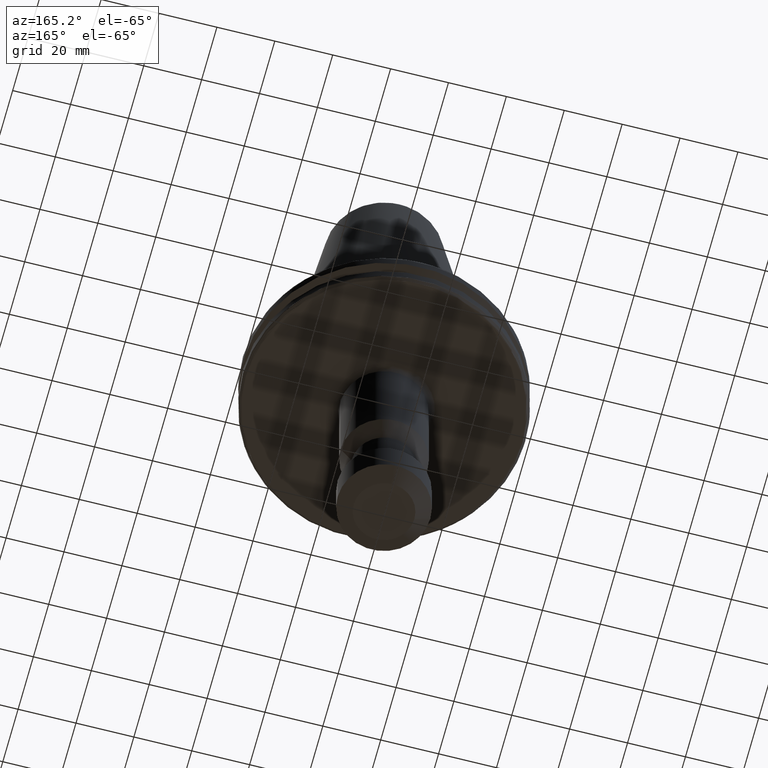
[diagram: clean part render]
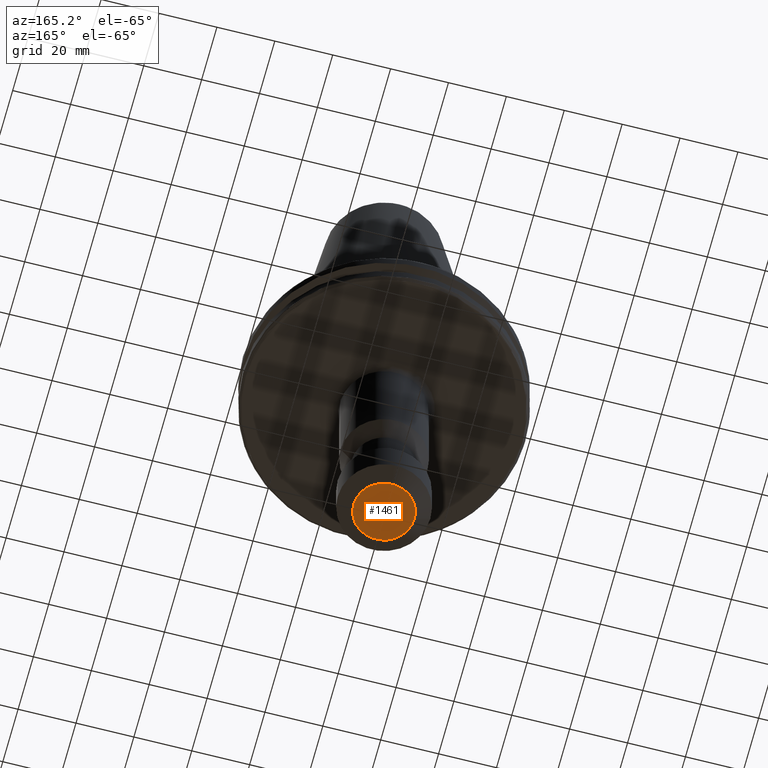
[diagram: same view with one face highlighted and labeled with its STEP entity id]
A machine part, auxiliary view. The second image highlights one B-rep face of the part: STEP entity #1461.
In plain terms, the highlighted planar face has unit normal (0, 0, 1).
Its self-contained STEP definition (entity closure, byte-faithful):
#56 = CIRCLE ( 'NONE', #667, 10.50000000000000200 ) ;
#91 = EDGE_CURVE ( 'NONE', #2897, #895, #56, .T. ) ;
#667 = AXIS2_PLACEMENT_3D ( 'NONE', #3267, #1706, #2788 ) ;
#736 = PLANE ( 'NONE',  #1649 ) ;
#752 = DIRECTION ( 'NONE',  ( 1.000000000000000000, 0.0000000000000000000, -0.0000000000000000000 ) ) ;
#895 = VERTEX_POINT ( 'NONE', #3171 ) ;
#1461 = ADVANCED_FACE ( 'NONE', ( #1680 ), #736, .F. ) ;
#1547 = DIRECTION ( 'NONE',  ( 0.0000000000000000000, -0.0000000000000000000, 1.000000000000000000 ) ) ;
#1649 = AXIS2_PLACEMENT_3D ( 'NONE', #2069, #2346, #752 ) ;
#1680 = FACE_OUTER_BOUND ( 'NONE', #2620, .T. ) ;
#1706 = DIRECTION ( 'NONE',  ( 0.0000000000000000000, -0.0000000000000000000, 1.000000000000000000 ) ) ;
#1784 = ORIENTED_EDGE ( 'NONE', *, *, #2815, .F. ) ;
#2069 = CARTESIAN_POINT ( 'NONE',  ( 0.0000000000000000000, 0.0000000000000000000, -99.99999999999998600 ) ) ;
#2346 = DIRECTION ( 'NONE',  ( 0.0000000000000000000, 0.0000000000000000000, 1.000000000000000000 ) ) ;
#2620 = EDGE_LOOP ( 'NONE', ( #2935, #1784 ) ) ;
#2631 = CARTESIAN_POINT ( 'NONE',  ( 10.50000000000000200, 0.0000000000000000000, -99.99999999999997200 ) ) ;
#2633 = AXIS2_PLACEMENT_3D ( 'NONE', #3121, #1547, #3399 ) ;
#2788 = DIRECTION ( 'NONE',  ( 1.000000000000000000, 0.0000000000000000000, 0.0000000000000000000 ) ) ;
#2815 = EDGE_CURVE ( 'NONE', #895, #2897, #3232, .T. ) ;
#2897 = VERTEX_POINT ( 'NONE', #2631 ) ;
#2935 = ORIENTED_EDGE ( 'NONE', *, *, #91, .F. ) ;
#3121 = CARTESIAN_POINT ( 'NONE',  ( 0.0000000000000000000, 0.0000000000000000000, -99.99999999999997200 ) ) ;
#3171 = CARTESIAN_POINT ( 'NONE',  ( -10.50000000000000200, 1.622657008870243100E-015, -99.99999999999997200 ) ) ;
#3232 = CIRCLE ( 'NONE', #2633, 10.50000000000000200 ) ;
#3267 = CARTESIAN_POINT ( 'NONE',  ( 0.0000000000000000000, 0.0000000000000000000, -99.99999999999997200 ) ) ;
#3399 = DIRECTION ( 'NONE',  ( 1.000000000000000000, 0.0000000000000000000, 0.0000000000000000000 ) ) ;